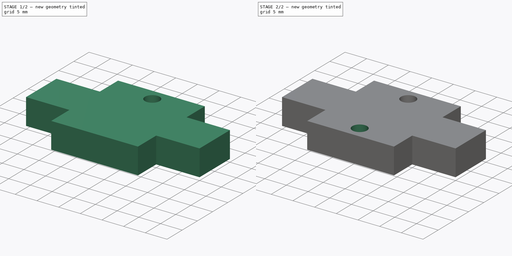
[diagram: build sequence overview — one tinted view per stage of 2, left to right]
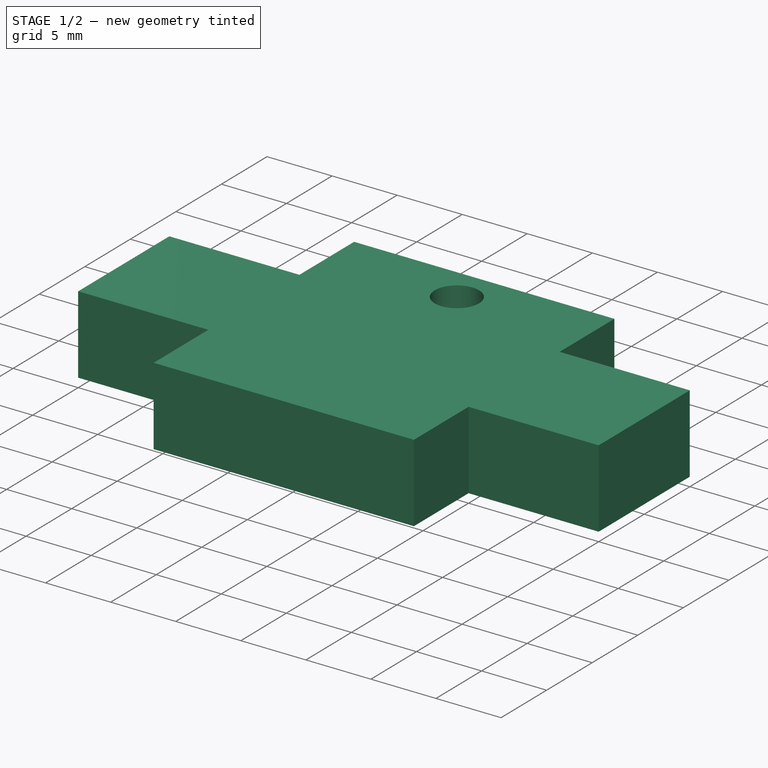
[diagram: stage 1 of 2 — iso view after this stage's code; geometry added in this stage tinted green]
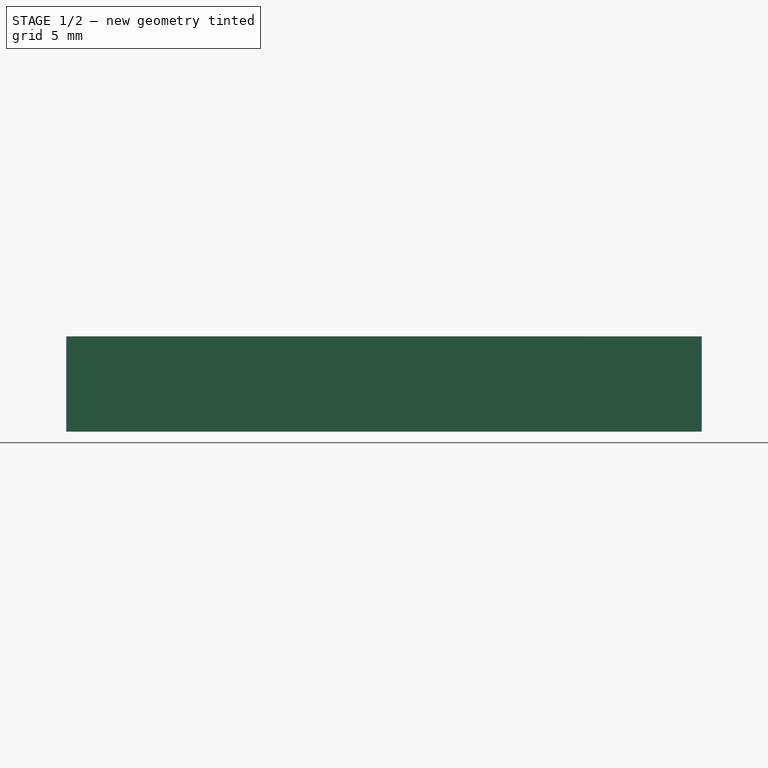
[diagram: stage 1 of 2 — front view after this stage's code; geometry added in this stage tinted green]
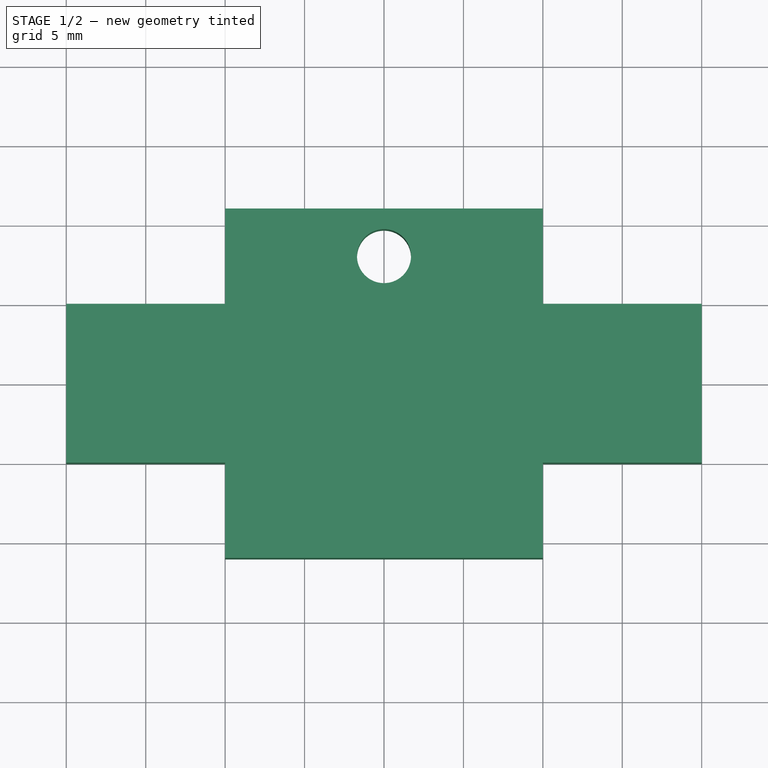
[diagram: stage 1 of 2 — top view after this stage's code; geometry added in this stage tinted green]
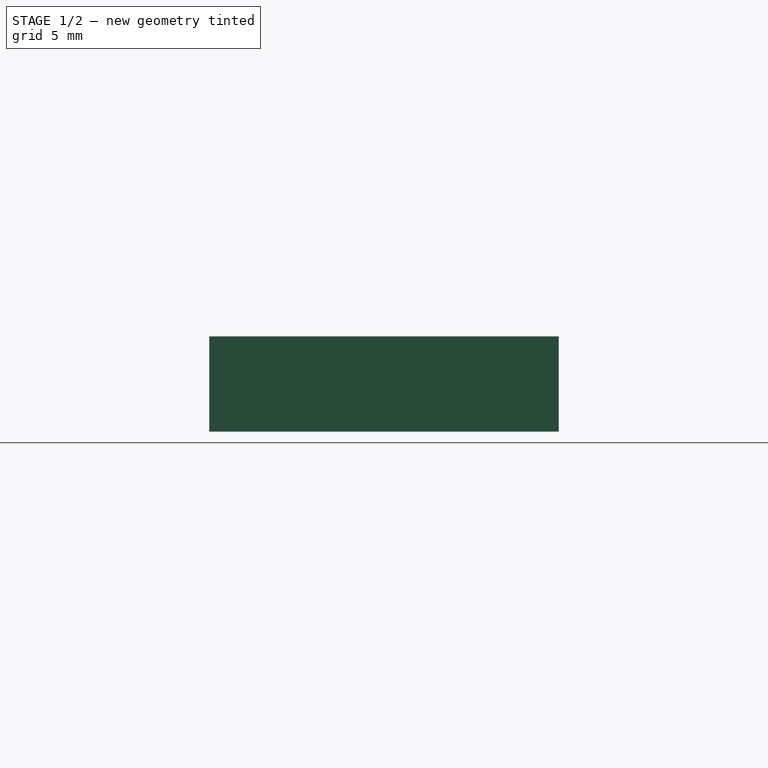
[diagram: stage 1 of 2 — right view after this stage's code; geometry added in this stage tinted green]
FCSTD DOCUMENT  (FreeCAD 0.19R24291 (Git))
Label: Support_pivot_codeur_top
License: All rights reserved
LicenseURL: http://en.wikipedia.org/wiki/All_rights_reserved
objects: Sketcher::SketchObject×2, PartDesign::Pad×1, PartDesign::Pocket×1, PartDesign::Mirrored×1, PartDesign::Body×1, Part::Part2DObjectPython×1
note: 9 computed .brp shape members not serialized (recipe doc carries the construction recipe); baked Part::Feature solids carry a one-line shape summary decoded from their .brp

FEATURE [Sketcher::SketchObject] Sketch
  FullyConstrained = true
  MapMode = 5
  Support = -> [XY_Plane]
  sketch-geometry (15):
    g0: LineSegment StartX=-20 StartY=-5 StartZ=0 EndX=-20 EndY=5 EndZ=0
    g1: LineSegment StartX=-20 StartY=5 StartZ=0 EndX=-10 EndY=5 EndZ=0
    g2: LineSegment StartX=-10 StartY=5 StartZ=0 EndX=-10 EndY=11 EndZ=0
    g3: LineSegment StartX=-10 StartY=11 StartZ=0 EndX=10 EndY=11 EndZ=0
    g4: LineSegment StartX=10 StartY=11 StartZ=0 EndX=10 EndY=5 EndZ=0
    g5: LineSegment StartX=10 StartY=5 StartZ=0 EndX=20 EndY=5 EndZ=0
    g6: LineSegment StartX=20 StartY=5 StartZ=0 EndX=20 EndY=-5 EndZ=0
    g7: LineSegment StartX=20 StartY=-5 StartZ=0 EndX=10 EndY=-5 EndZ=0
    g8: LineSegment StartX=10 StartY=-5 StartZ=0 EndX=10 EndY=-11 EndZ=0
    g9: LineSegment StartX=10 StartY=-11 StartZ=0 EndX=-10 EndY=-11 EndZ=0
    g10: LineSegment StartX=-10 StartY=-11 StartZ=0 EndX=-10 EndY=-5 EndZ=0
    g11: LineSegment StartX=-10 StartY=-5 StartZ=0 EndX=-20 EndY=-5 EndZ=0
    g12: LineSegment StartX=-20 StartY=5 StartZ=0 EndX=20 EndY=-5 EndZ=0
    g13: LineSegment StartX=-20 StartY=-5 StartZ=0 EndX=20 EndY=5 EndZ=0
    g14: GeomPoint X=0 Y=0 Z=0
  constraints (41):
    c: Vertical(g0)
    c: Coincident(g0,g1)
    c: Horizontal(g1)
    c: Coincident(g1,g2)
    c: Vertical(g2)
    c: Coincident(g2,g3)
    c: Horizontal(g3)
    c: Coincident(g3,g4)
    c: Vertical(g4)
    c: Coincident(g4,g5)
    c: Horizontal(g5)
    c: Coincident(g5,g6)
    c: Vertical(g6)
    c: Coincident(g6,g7)
    c: Horizontal(g7)
    c: Coincident(g7,g8)
    c: Vertical(g8)
    c: Coincident(g8,g9)
    c: Horizontal(g9)
    c: Coincident(g9,g10)
    c: Vertical(g10)
    c: Coincident(g10,g11)
    c: Horizontal(g11)
    c: Coincident(g11,g0)
    c: DistanceX(g0,g6) = 40
    c: DistanceY(g8,g3) = 22
    c: DistanceY(g9,g10) = 6
    c: Equal(g10,g8)
    c: Equal(g8,g4)
    c: Equal(g4,g2)
    c: DistanceX(g7,g6) = 10
    c: Equal(g7,g5)
    c: Equal(g5,g1)
    c: Equal(g1,g11)
    c: Coincident(g12,g0)
    c: Coincident(g12,g6)
    c: Coincident(g13,g0)
    c: Coincident(g13,g5)
    c: PointOnObject(g14,g13)
    c: PointOnObject(g14,g12)
    c: Coincident(g14,g-1)
FEATURE [PartDesign::Pad] Pad  label="base_support"
  Direction = (1,1,1)
  Length = 6
  Length2 = 100
  Profile = -> Sketch
  Type = 0
FEATURE [Sketcher::SketchObject] Sketch001
  ExternalGeometry = -> [Pad]
  FullyConstrained = true
  MapMode = 5
  Placement = pos=(0,0,6) rot=(0,0,1;0rad)
  Support = -> [Pad]
  sketch-geometry (2):
    g0: LineSegment StartX=-10 StartY=8 StartZ=0 EndX=10 EndY=8 EndZ=0
    g1: Circle CenterX=0 CenterY=8 CenterZ=0 NormalX=0 NormalY=0 NormalZ=1 AngleXU=0 Radius=1.7
  constraints (6):
    c: PointOnObject(g0,g-4)
    c: Horizontal(g0)
    c: Symmetric(g-3,g-3,g0)
    c: PointOnObject(g1,g0)
    c: Radius(g1) = 1.7
    c: PointOnObject(g1,g-2)
FEATURE [PartDesign::Pocket] Pocket  label="trou_m3"
  BaseFeature = -> Pad
  Length = 5
  Length2 = 100
  Profile = -> Sketch001
  Type = 1
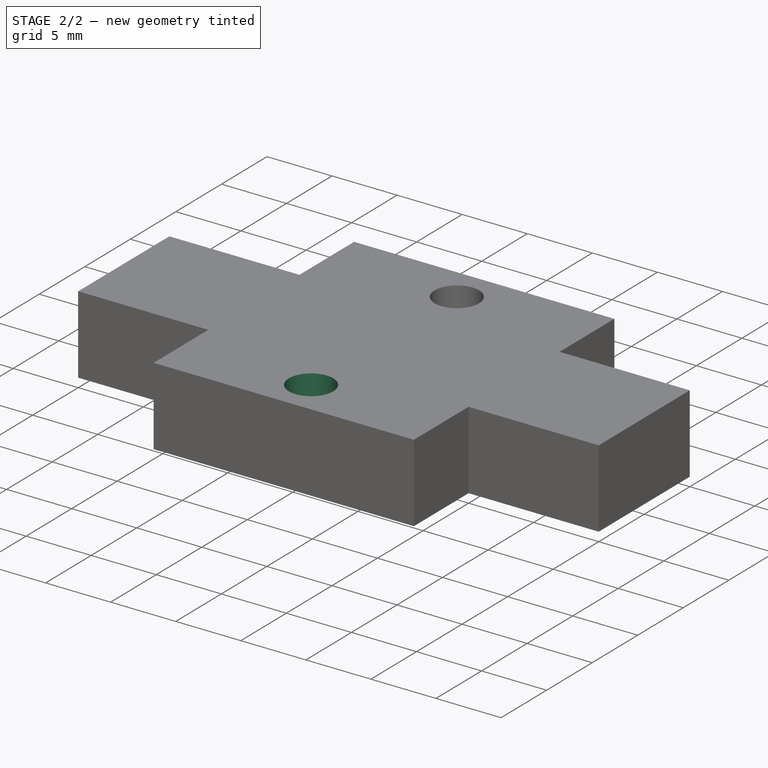
[diagram: stage 2 of 2 — iso view after this stage's code; geometry added in this stage tinted green]
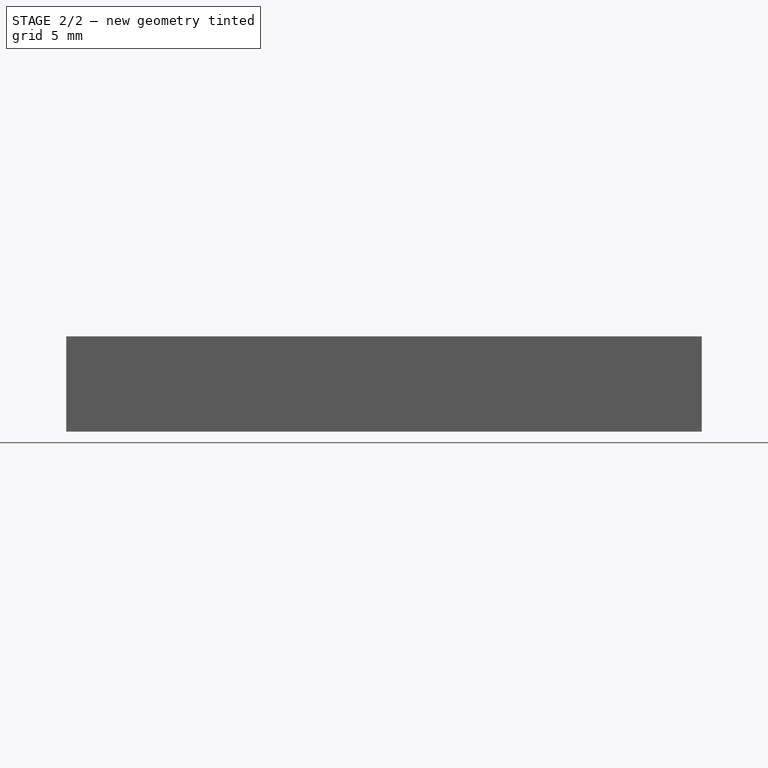
[diagram: stage 2 of 2 — front view after this stage's code; geometry added in this stage tinted green]
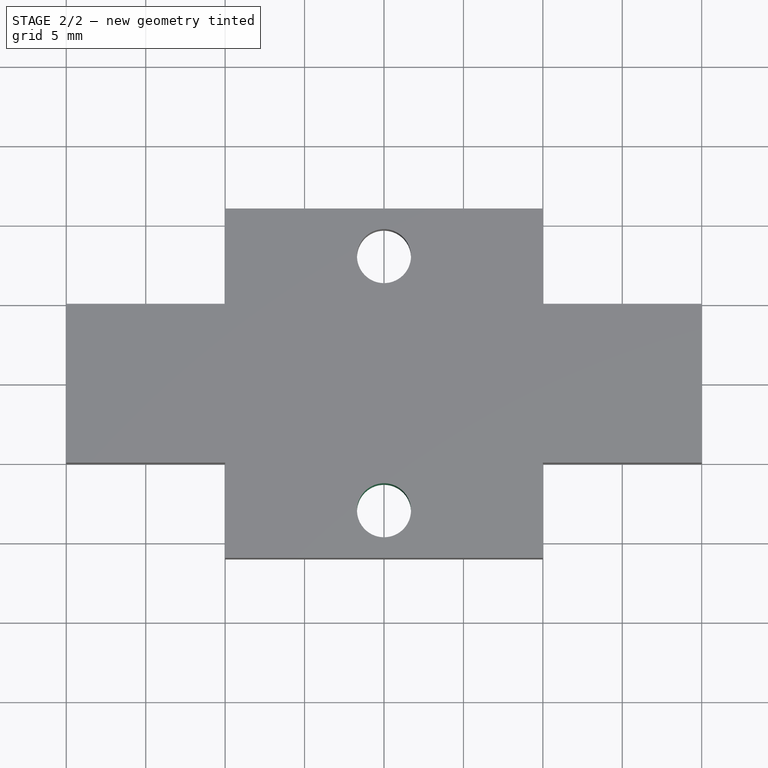
[diagram: stage 2 of 2 — top view after this stage's code; geometry added in this stage tinted green]
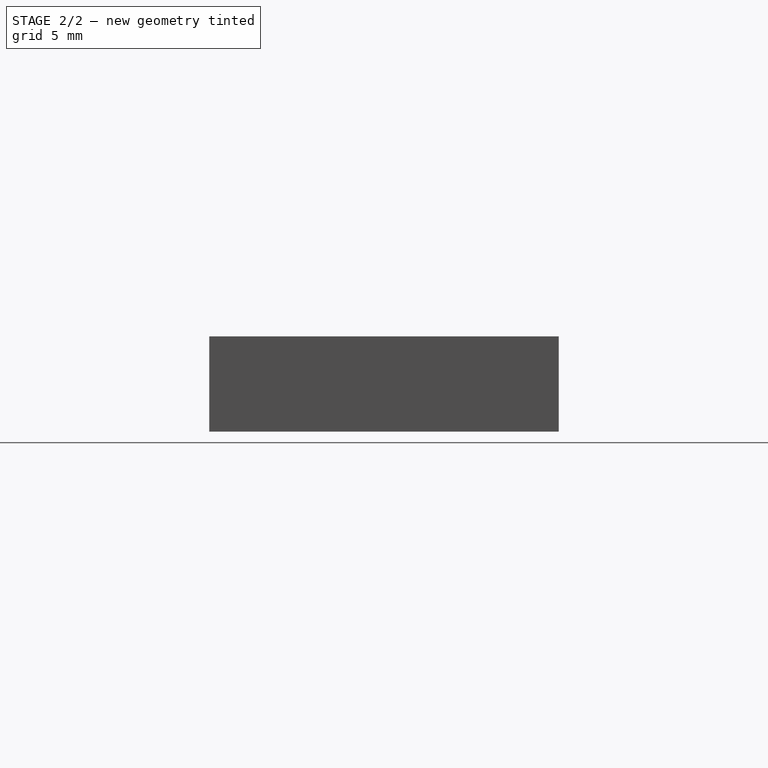
[diagram: stage 2 of 2 — right view after this stage's code; geometry added in this stage tinted green]
FEATURE [PartDesign::Mirrored] Mirrored  label="trou_m3_mirrored"
  BaseFeature = -> Pocket
  MirrorPlane = -> Sketch001 [H_Axis]
  Originals = -> [Pocket]
FEATURE [PartDesign::Body] Body
  Group = -> [Sketch,Pad,Sketch001,Pocket,Mirrored]
  Origin = -> Origin
  Tip = -> Mirrored
FEATURE [Part::Part2DObjectPython] Shape2DView  # Draft 2D object (typed FeaturePython)
  Base = -> Body
  FuseArch = false
  HiddenLines = false
  InPlace = true
  Projection = (0,0,1)
  ProjectionMode = 0
  SegmentLength = 0.05
  Tessellation = false
  VisibleOnly = false
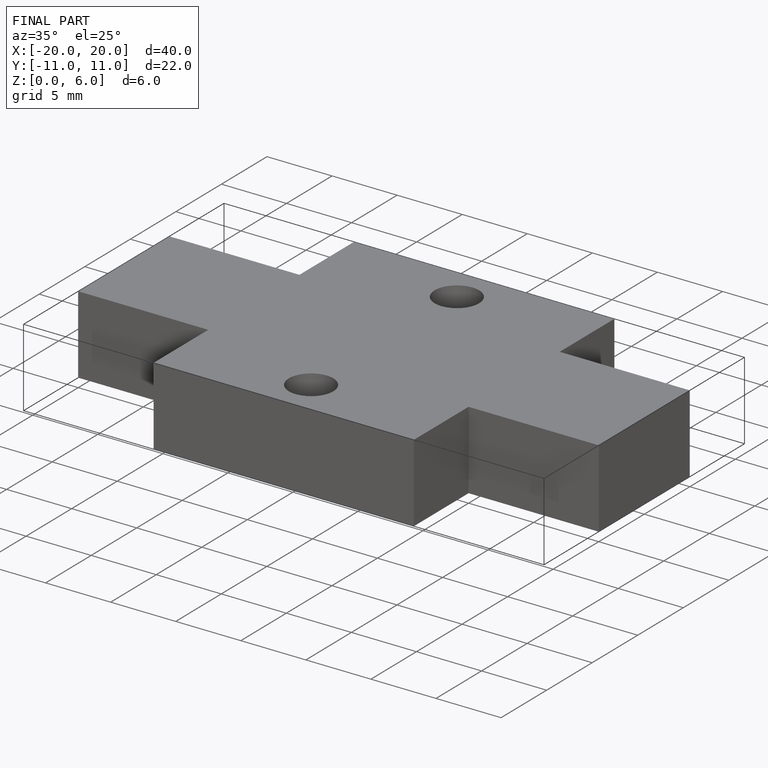
[diagram: finished part — iso view with bounding-box wireframe]
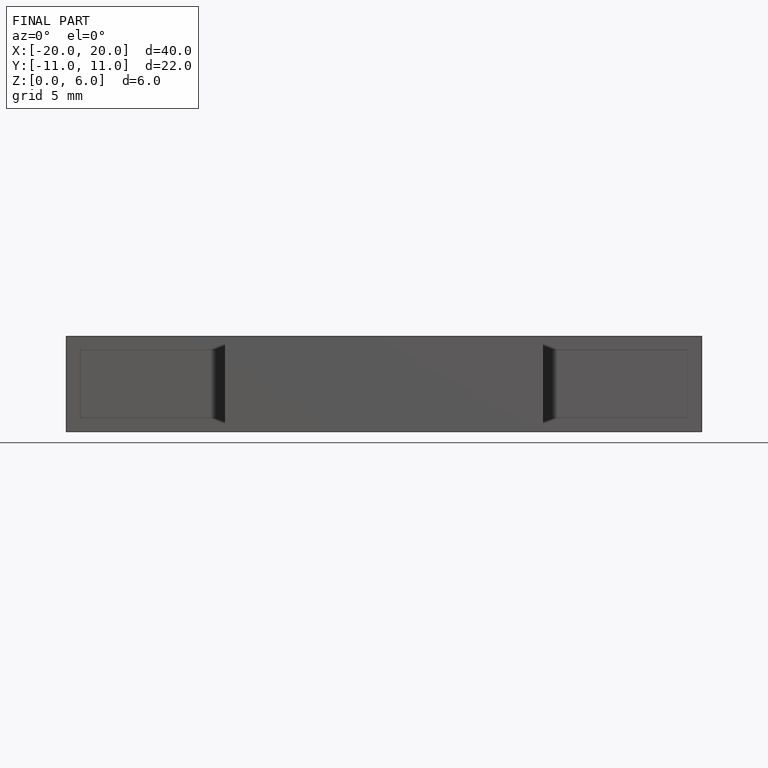
[diagram: finished part — front view with bounding-box wireframe]
